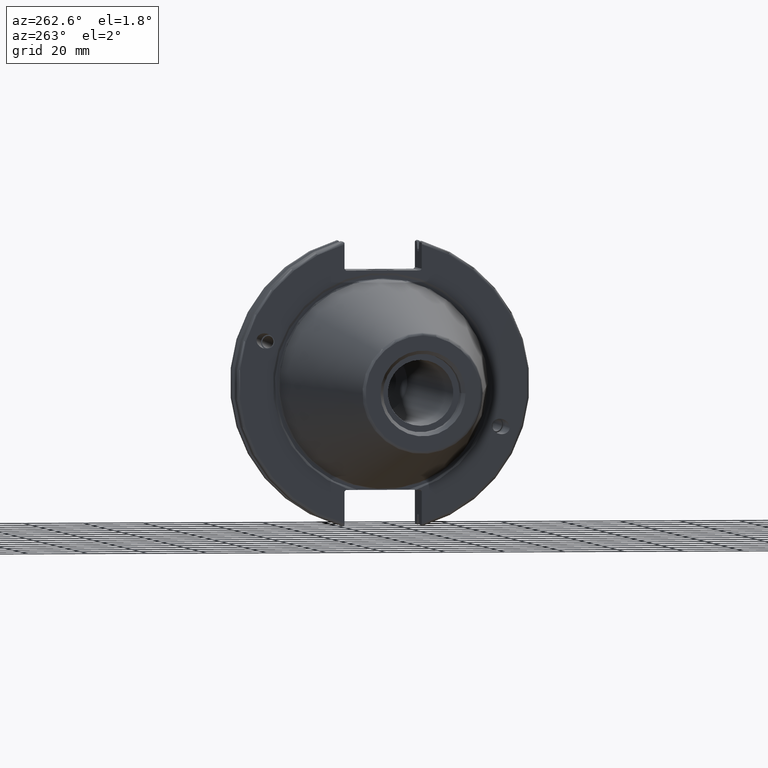
[diagram: clean part render]
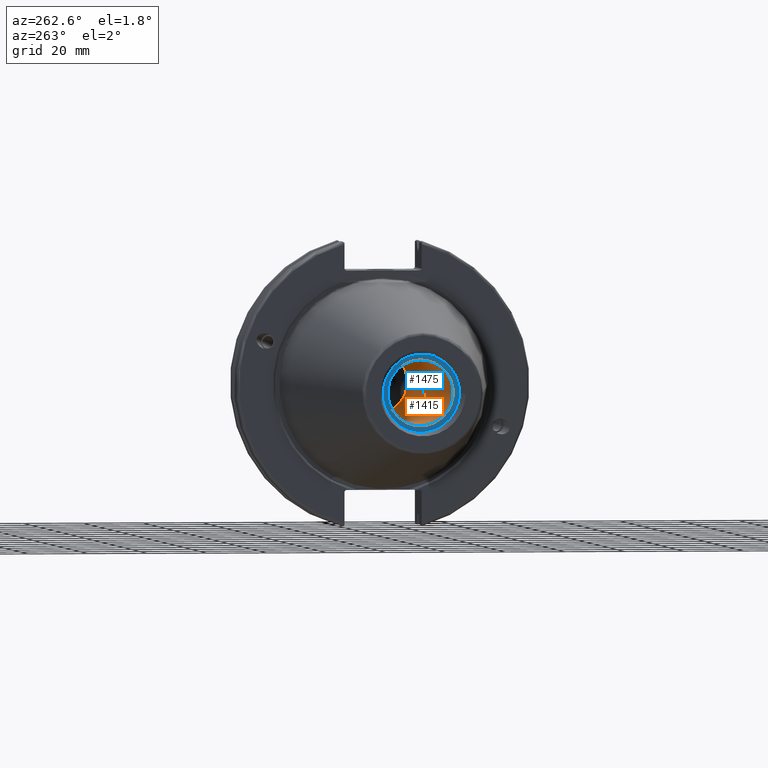
[diagram: same view with the hole feature highlighted: cylindrical wall and planar end face, labeled with their STEP entity ids]
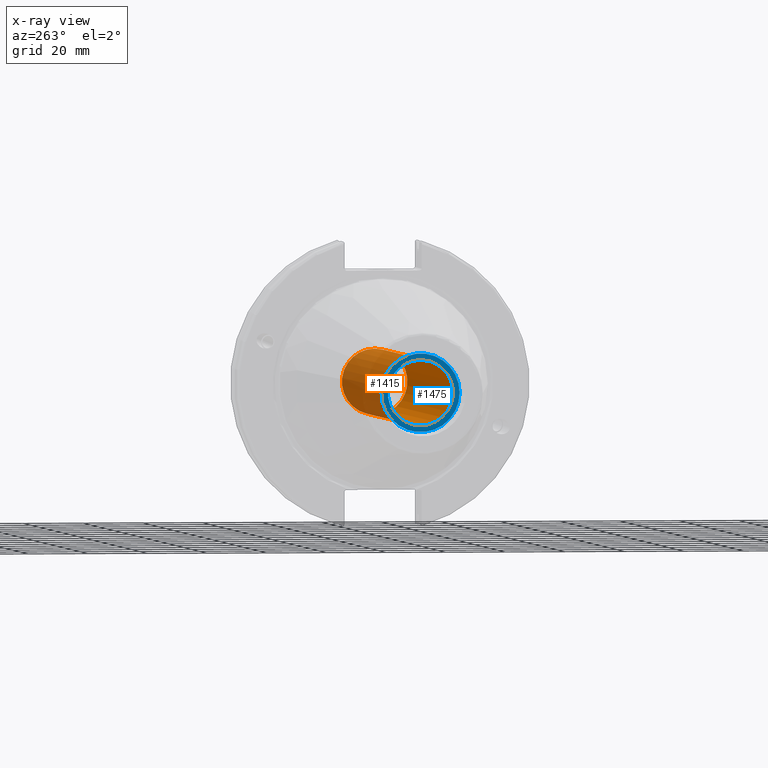
[diagram: x-ray of the same camera — body ghosted, the hole faces saturated]
A machine part, auxiliary view. The highlighted faces form one hole feature of diameter 21.971 mm: the cylindrical wall (entity #1415, orange) and its adjacent planar end face (entity #1475, blue) — they share a circular edge in the B-rep.
The next image is the same camera in x-ray (body ghosted, the hole faces saturated) — the bore reads through the body.
Wall:
#129=CYLINDRICAL_SURFACE('',#1548,10.9855);
#162=FACE_OUTER_BOUND('',#252,.T.);
#252=EDGE_LOOP('',(#1025,#1026,#1027,#1028));
#353=LINE('',#2196,#445);
#445=VECTOR('',#1777,10.9855);
#539=CIRCLE('',#1547,10.9855);
#540=CIRCLE('',#1549,10.9855);
#626=VERTEX_POINT('',#2190);
#627=VERTEX_POINT('',#2194);
#779=EDGE_CURVE('',#626,#626,#539,.T.);
#781=EDGE_CURVE('',#627,#627,#540,.T.);
#782=EDGE_CURVE('',#627,#626,#353,.T.);
#1025=ORIENTED_EDGE('',*,*,#781,.F.);
#1026=ORIENTED_EDGE('',*,*,#782,.T.);
#1027=ORIENTED_EDGE('',*,*,#779,.F.);
#1028=ORIENTED_EDGE('',*,*,#782,.F.);
#1415=ADVANCED_FACE('',(#162),#129,.F.);
#1547=AXIS2_PLACEMENT_3D('',#2191,#1770,#1771);
#1548=AXIS2_PLACEMENT_3D('',#2193,#1773,#1774);
#1549=AXIS2_PLACEMENT_3D('',#2195,#1775,#1776);
#1770=DIRECTION('center_axis',(-1.,0.,0.));
#1771=DIRECTION('ref_axis',(0.,0.,1.));
#1773=DIRECTION('center_axis',(-1.,0.,0.));
#1774=DIRECTION('ref_axis',(0.,0.,1.));
#1775=DIRECTION('center_axis',(1.,0.,0.));
#1776=DIRECTION('ref_axis',(0.,0.,1.));
#1777=DIRECTION('',(1.,0.,0.));
#2190=CARTESIAN_POINT('',(23.4,-1.34533574120333E-15,-10.9855));
#2191=CARTESIAN_POINT('Origin',(23.4,0.,0.));
#2193=CARTESIAN_POINT('Origin',(-39.1,0.,0.));
#2194=CARTESIAN_POINT('',(-95.25,1.34533574120333E-15,-10.9855));
#2195=CARTESIAN_POINT('Origin',(-95.25,0.,0.));
#2196=CARTESIAN_POINT('',(-39.1,-1.34533574120333E-15,-10.9855));
End face:
#71=FACE_BOUND('',#321,.T.);
#107=PLANE('',#1653);
#222=FACE_OUTER_BOUND('',#320,.T.);
#320=EDGE_LOOP('',(#1335));
#321=EDGE_LOOP('',(#1336));
#540=CIRCLE('',#1549,10.9855);
#583=CIRCLE('',#1654,13.1);
#627=VERTEX_POINT('',#2194);
#732=VERTEX_POINT('',#2757);
#781=EDGE_CURVE('',#627,#627,#540,.T.);
#939=EDGE_CURVE('',#732,#732,#583,.T.);
#1335=ORIENTED_EDGE('',*,*,#939,.F.);
#1336=ORIENTED_EDGE('',*,*,#781,.T.);
#1475=ADVANCED_FACE('',(#222,#71),#107,.T.);
#1549=AXIS2_PLACEMENT_3D('',#2195,#1775,#1776);
#1653=AXIS2_PLACEMENT_3D('',#2756,#2052,#2053);
#1654=AXIS2_PLACEMENT_3D('',#2758,#2054,#2055);
#1775=DIRECTION('center_axis',(1.,0.,0.));
#1776=DIRECTION('ref_axis',(0.,0.,1.));
#2052=DIRECTION('center_axis',(-1.,0.,0.));
#2053=DIRECTION('ref_axis',(0.,0.,1.));
#2054=DIRECTION('center_axis',(1.,0.,0.));
#2055=DIRECTION('ref_axis',(0.,0.,-1.));
#2194=CARTESIAN_POINT('',(-95.25,1.34533574120333E-15,-10.9855));
#2195=CARTESIAN_POINT('Origin',(-95.25,0.,0.));
#2756=CARTESIAN_POINT('Origin',(-95.25,13.1,0.));
#2757=CARTESIAN_POINT('',(-95.25,-13.1,-1.60428730688303E-15));
#2758=CARTESIAN_POINT('Origin',(-95.25,0.,0.));